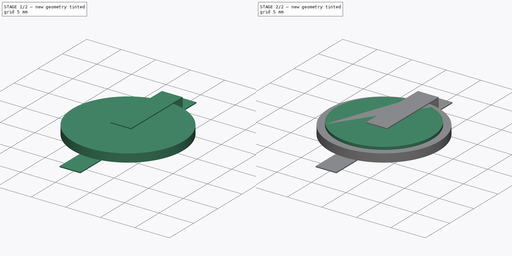
[diagram: build sequence overview — one tinted view per stage of 2, left to right]
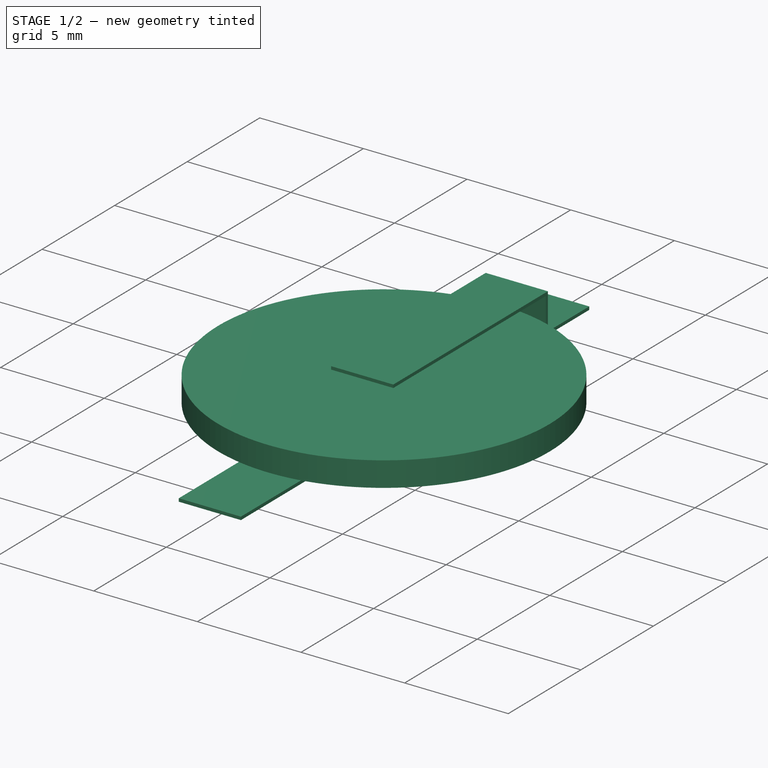
[diagram: stage 1 of 2 — iso view after this stage's code; geometry added in this stage tinted green]
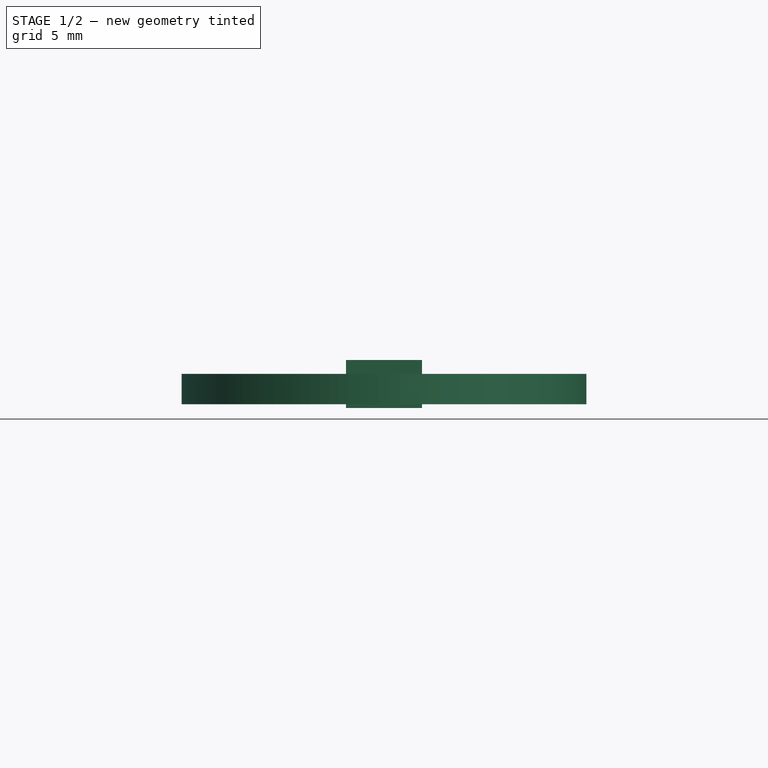
[diagram: stage 1 of 2 — front view after this stage's code; geometry added in this stage tinted green]
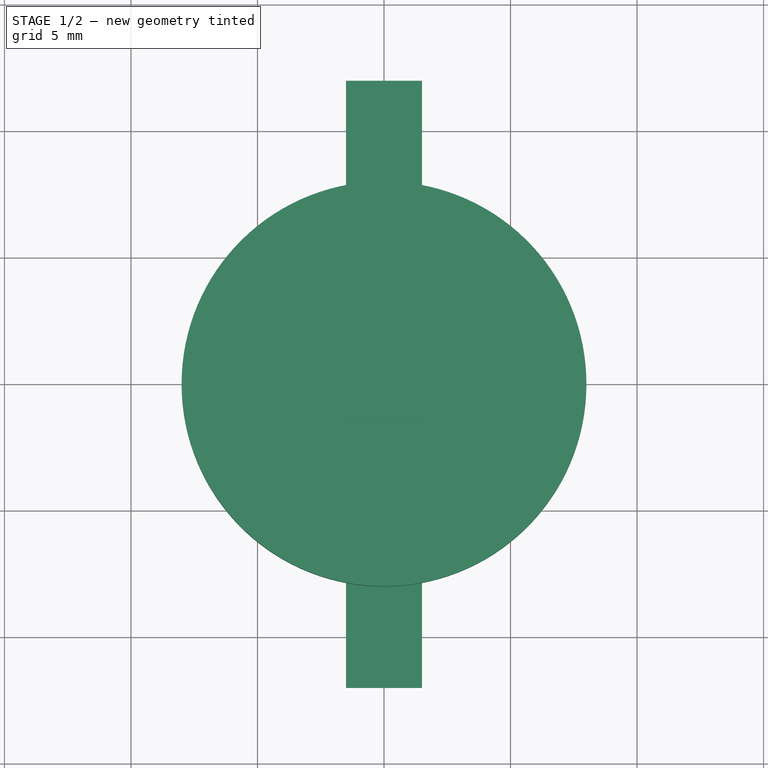
[diagram: stage 1 of 2 — top view after this stage's code; geometry added in this stage tinted green]
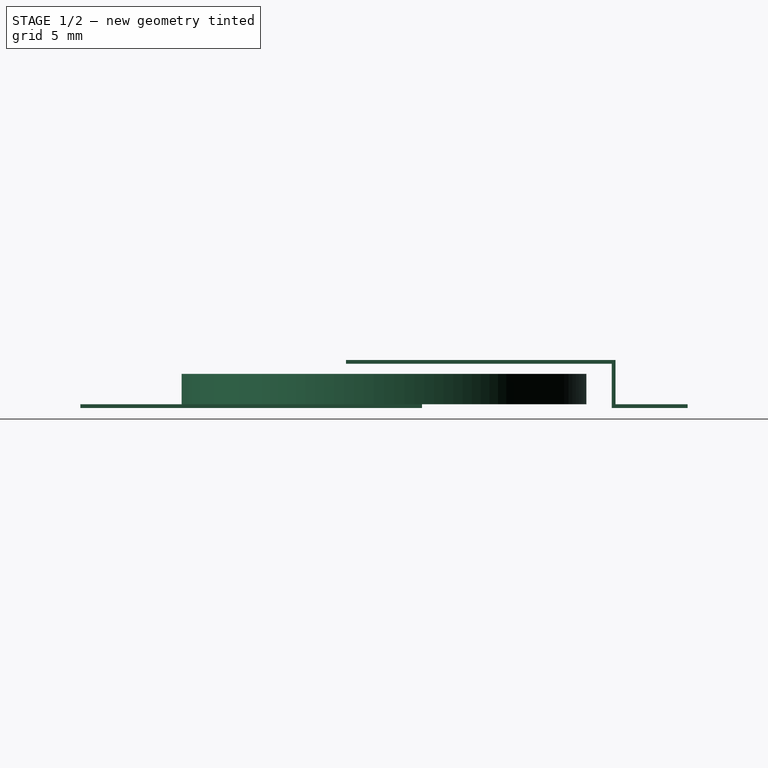
[diagram: stage 1 of 2 — right view after this stage's code; geometry added in this stage tinted green]
FCSTD DOCUMENT  (FreeCAD 1.1R44874 (Git))
Label: Battery_CR1616_Horizontal_Tabbed
License: Creative Commons Attribution 4.0
LicenseURL: https://creativecommons.org/licenses/by/4.0/
objects: Sketcher::SketchObject×3, PartDesign::Pad×3, App::Point×2, PartDesign::Body×2
note: 17 computed .brp shape members not serialized (recipe doc carries the construction recipe); baked Part::Feature solids carry a one-line shape summary decoded from their .brp

FEATURE [App::Point] Origin001
  Role = Origin
FEATURE [Sketcher::SketchObject] Sketch  label="PosTerminal"
  ArcFitTolerance = 1e-06
  AttachmentOffset = pos=(0,0,0.15) rot=(0,0,1;0rad)
  AttachmentSupport = -> [Origin]
  ExternalTypes = [0]
  FullyConstrained = true
  MakeInternals = false
  MapMode = 5
  Placement = pos=(0,0,0.15) rot=(0,0,1;0rad)
  _ExternalGeoVersion = 1
  sketch-geometry (1):
    g0: Circle CenterX=0 CenterY=0 CenterZ=0 NormalX=0 NormalY=0 NormalZ=1 AngleXU=0 Radius=8
  constraints (2):
    c: Coincident(g0,g-1)
    c: Diameter(g0) = 16
FEATURE [PartDesign::Pad] Pad  label="PadPosTerminal"
  Direction = (0,0,1)
  Length = 1.2
  Length2 = 10
  Profile = -> Sketch
  ReferenceAxis = -> Sketch [N_Axis]
  Refine = true
  SideType = 0
  Suppressed = false
  Type = 0
  Type2 = 0
FEATURE [PartDesign::Body] Body  label="Battery"
  AllowCompound = true
  Group = -> [Sketch,Pad,Sketch001,Pad001]
  Origin = -> Origin
  Tip = -> Pad001
FEATURE [App::Point] Origin003
  Role = Origin
FEATURE [Sketcher::SketchObject] Sketch003  label="TabsSide"
  ArcFitTolerance = 1e-06
  AttachmentSupport = -> [Origin]
  ExternalTypes = [0,0]
  FullyConstrained = true
  MakeInternals = false
  MapMode = 5
  Placement = pos=(0,0,0) rot=(0.57735,0.57735,0.57735;2.0944rad)
  _ExternalGeoVersion = 1
  sketch-geometry (16):
    g0: LineSegment StartX=-1.5 StartY=1.9 StartZ=0 EndX=-1.5 EndY=1.75 EndZ=0
    g1: LineSegment StartX=-1.5 StartY=1.75 StartZ=0 EndX=9 EndY=1.75 EndZ=0
    g2: LineSegment StartX=9.15 StartY=1.9 StartZ=0 EndX=-1.5 EndY=1.9 EndZ=0
    g3: LineSegment StartX=9 StartY=1.75 StartZ=0 EndX=9 EndY=0 EndZ=0
    g4: LineSegment StartX=9 StartY=0 StartZ=0 EndX=12 EndY=0 EndZ=0
    g5: LineSegment StartX=12 StartY=0 StartZ=0 EndX=12 EndY=0.15 EndZ=0
    g6: LineSegment StartX=12 StartY=0.15 StartZ=0 EndX=9.15 EndY=0.15 EndZ=0
    g7: LineSegment StartX=9.15 StartY=0.15 StartZ=0 EndX=9.15 EndY=1.9 EndZ=0
    g8: LineSegment [constr] StartX=9.15 StartY=0.15 StartZ=0 EndX=9 EndY=0.15 EndZ=0
    g9: LineSegment StartX=1.5 StartY=0 StartZ=0 EndX=1.5 EndY=0.15 EndZ=0
    g10: LineSegment StartX=1.5 StartY=0.15 StartZ=0 EndX=-12 EndY=0.15 EndZ=0
    g11: LineSegment StartX=-12 StartY=0.15 StartZ=0 EndX=-12 EndY=0 EndZ=0
    g12: LineSegment StartX=-12 StartY=0 StartZ=0 EndX=1.5 EndY=0 EndZ=0
    g13: LineSegment [constr] StartX=-1.5 StartY=1.75 StartZ=0 EndX=-1.5 EndY=0.15 EndZ=0
    g14: LineSegment [constr] StartX=1.5 StartY=0.15 StartZ=0 EndX=1.5 EndY=1.75 EndZ=0
    g15: LineSegment [constr] StartX=9 StartY=1.75 StartZ=0 EndX=9 EndY=1.9 EndZ=0
  constraints (47):
    c: Coincident(g0,g1)
    c: Coincident(g2,g0)
    c: Vertical(g0)
    c: Horizontal(g1)
    c: Horizontal(g2)
    c: Coincident(g3,g1)
    c: PointOnObject(g3,g-1)
    c: Vertical(g3)
    c: Coincident(g4,g3)
    c: PointOnObject(g4,g-1)
    c: Vertical(g5)
    c: Coincident(g6,g5)
    c: Horizontal(g6)
    c: Vertical(g7)
    c: Coincident(g2,g7)
    c: Coincident(g6,g7)
    c: Distance(g5,g5) = 0.15
    c: Coincident(g5,g4)
    c: Coincident(g8,g6)
    c: PointOnObject(g8,g3)
    c: Horizontal(g8)
    c: DistanceX(g3,g4) = 3
    c: Coincident(g9,g10)
    c: Coincident(g10,g11)
    c: Coincident(g11,g12)
    c: Coincident(g12,g9)
    c: Vertical(g9)
    c: Vertical(g11)
    c: Horizontal(g10)
    c: Horizontal(g12)
    c: PointOnObject(g9,g-1)
    c: Equal(g9,g0)
    c: DistanceX(g11,g4) = 24
    c: Coincident(g13,g0)
    c: PointOnObject(g13,g10)
    c: Vertical(g13)
    c: Coincident(g14,g9)
    c: Vertical(g14)
    c: Symmetric(g14,g0,g-2)
    c: DistanceX(g0,g14) = 3
    c: Coincident(g15,g1)
    c: PointOnObject(g15,g2)
    c: Vertical(g15)
    c: Equal(g15,g8)
    c: Equal(g8,g5)
    c: DistanceY(g13,g0) = 1.6
    c: Distance(g5,g-2) = 12
FEATURE [PartDesign::Pad] Pad003  label="PadTabsSide"
  Direction = (1,0,0)
  Length = 3
  Length2 = 10
  Profile = -> Sketch003
  ReferenceAxis = -> Sketch003 [N_Axis]
  Refine = true
  SideType = 2
  Suppressed = false
  Type = 0
  Type2 = 0
FEATURE [PartDesign::Body] Body001  label="Tabs"
  AllowCompound = true
  Group = -> [Sketch003,Pad003]
  Origin = -> Origin002
  Placement = pos=(0,0,0) rot=(0,0,1;3.14159rad)
  Tip = -> Pad003
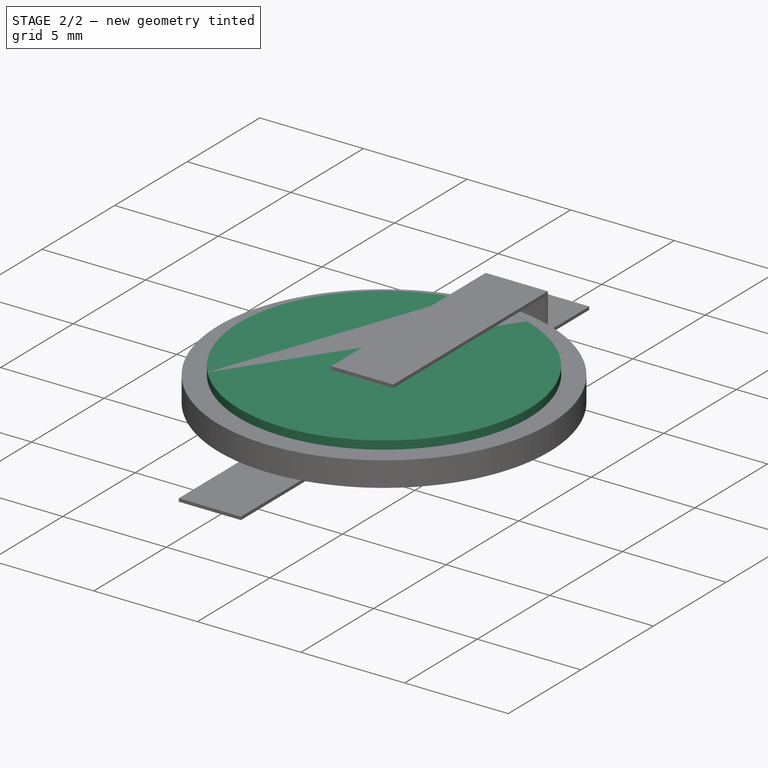
[diagram: stage 2 of 2 — iso view after this stage's code; geometry added in this stage tinted green]
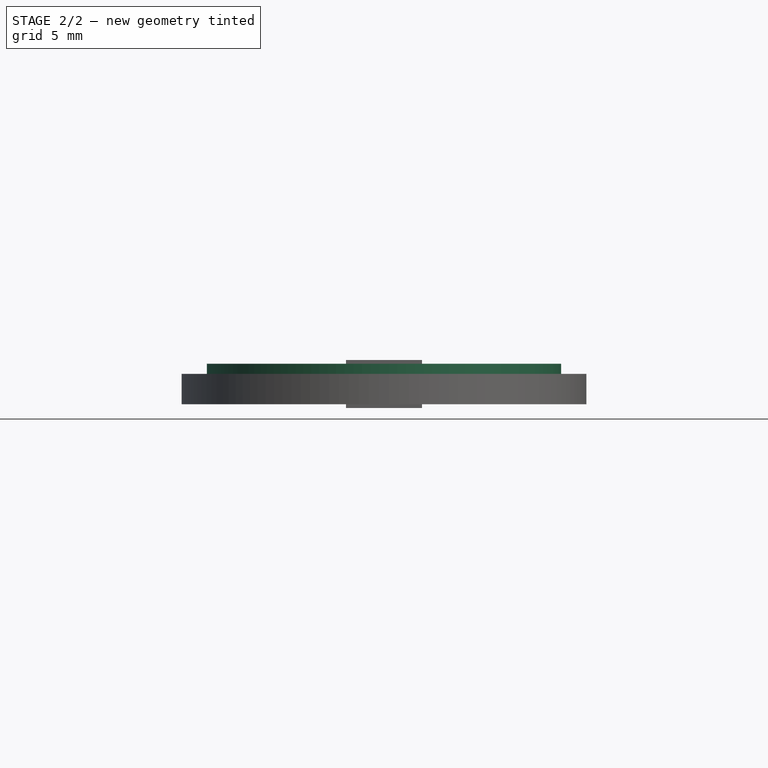
[diagram: stage 2 of 2 — front view after this stage's code; geometry added in this stage tinted green]
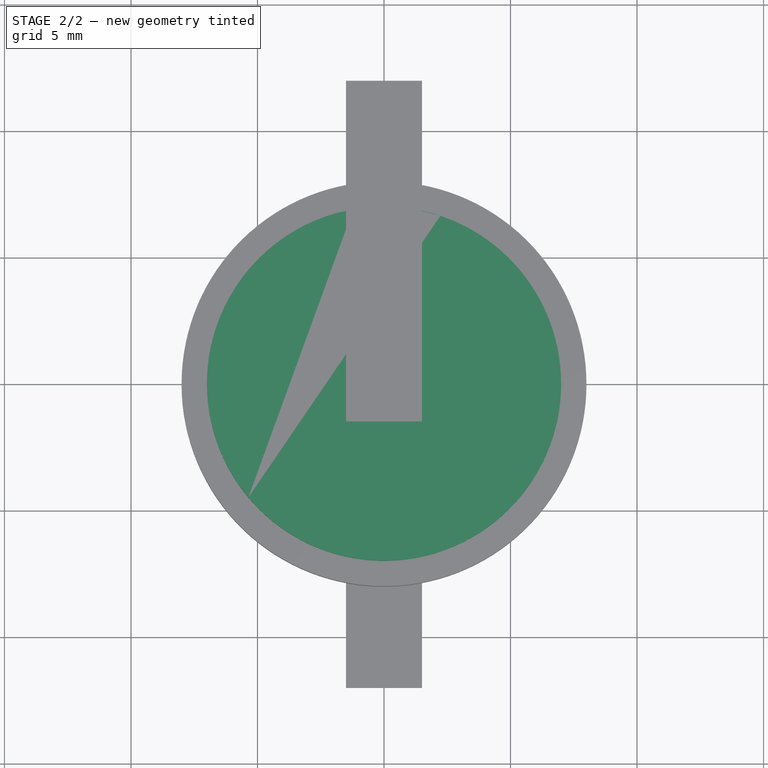
[diagram: stage 2 of 2 — top view after this stage's code; geometry added in this stage tinted green]
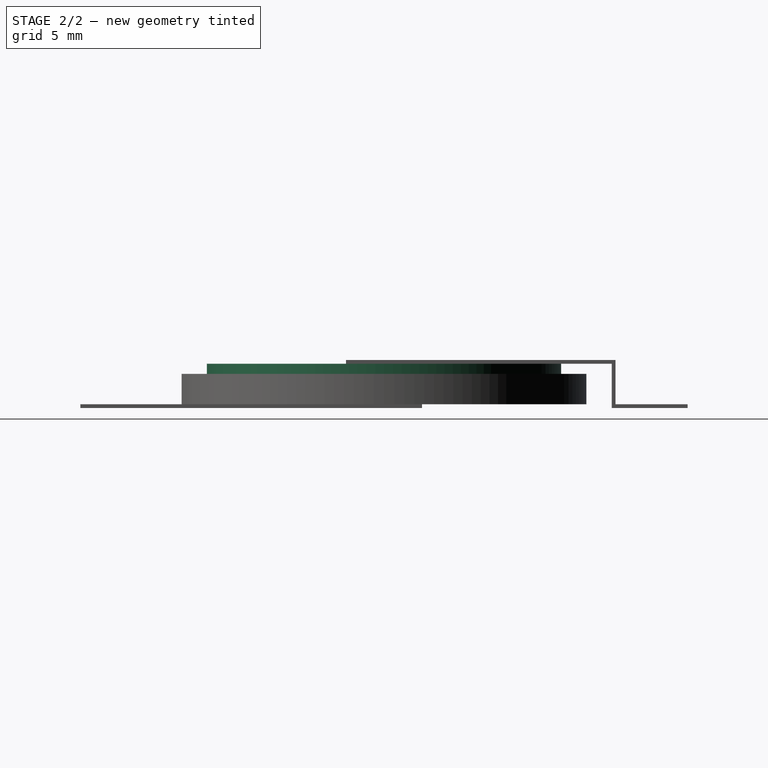
[diagram: stage 2 of 2 — right view after this stage's code; geometry added in this stage tinted green]
FEATURE [Sketcher::SketchObject] Sketch001  label="NegTerminal"
  ArcFitTolerance = 1e-06
  AttachmentSupport = -> [Pad]
  ExternalTypes = [0]
  FullyConstrained = true
  MakeInternals = false
  MapMode = 5
  Placement = pos=(0,0,1.35) rot=(0,0,1;0rad)
  _ExternalGeoVersion = 1
  sketch-geometry (1):
    g0: Circle CenterX=0 CenterY=0 CenterZ=0 NormalX=0 NormalY=0 NormalZ=1 AngleXU=0 Radius=7
  constraints (2):
    c: Coincident(g0,g-1)
    c: Diameter(g0) = 14
FEATURE [PartDesign::Pad] Pad001  label="PadNegTerminal"
  BaseFeature = -> Pad
  Direction = (0,0,1)
  Length = 0.4
  Length2 = 10
  Profile = -> Sketch001
  ReferenceAxis = -> Sketch001 [N_Axis]
  Refine = true
  SideType = 0
  Suppressed = false
  Type = 0
  Type2 = 0
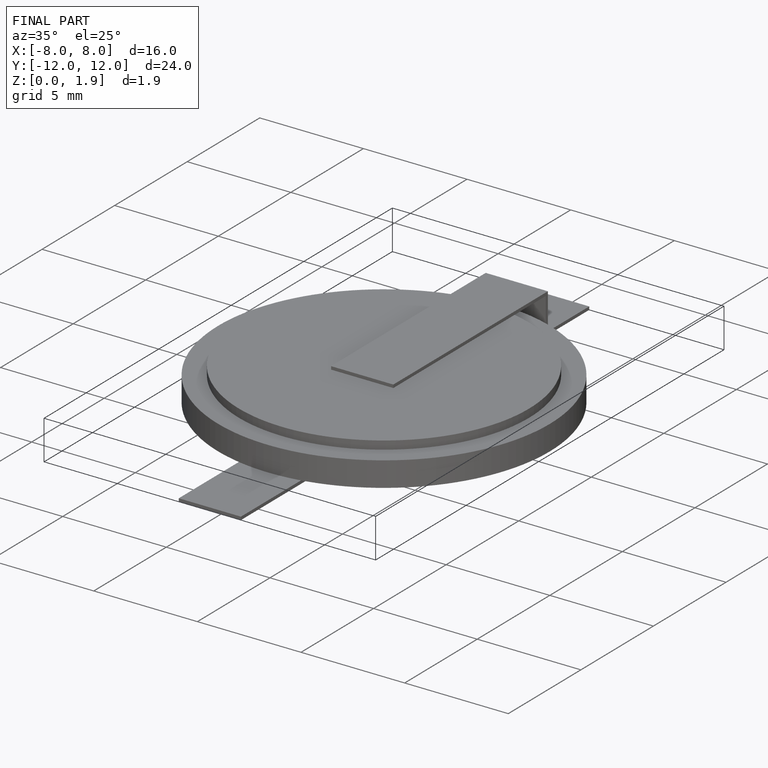
[diagram: finished part — iso view with bounding-box wireframe]
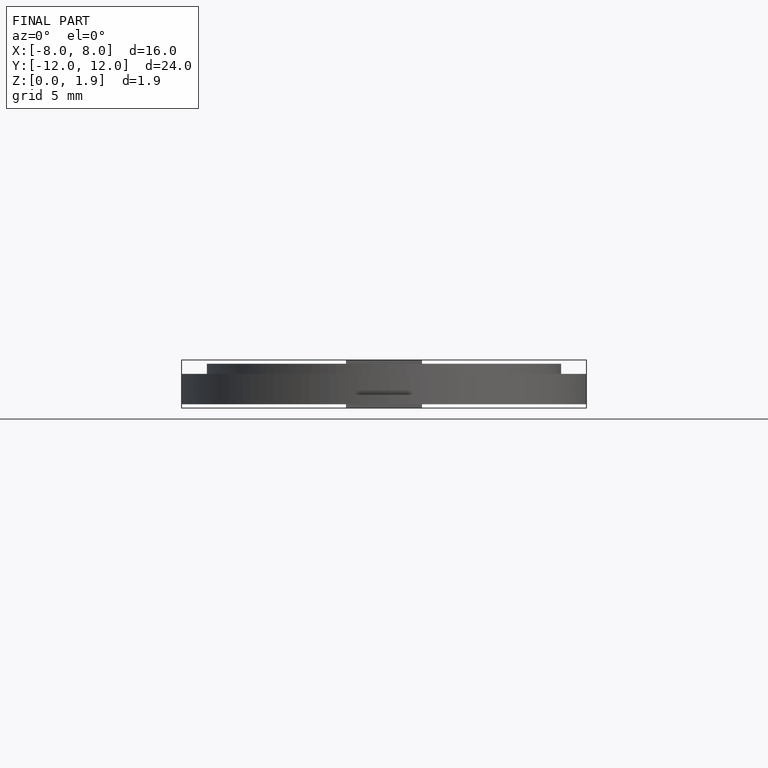
[diagram: finished part — front view with bounding-box wireframe]
